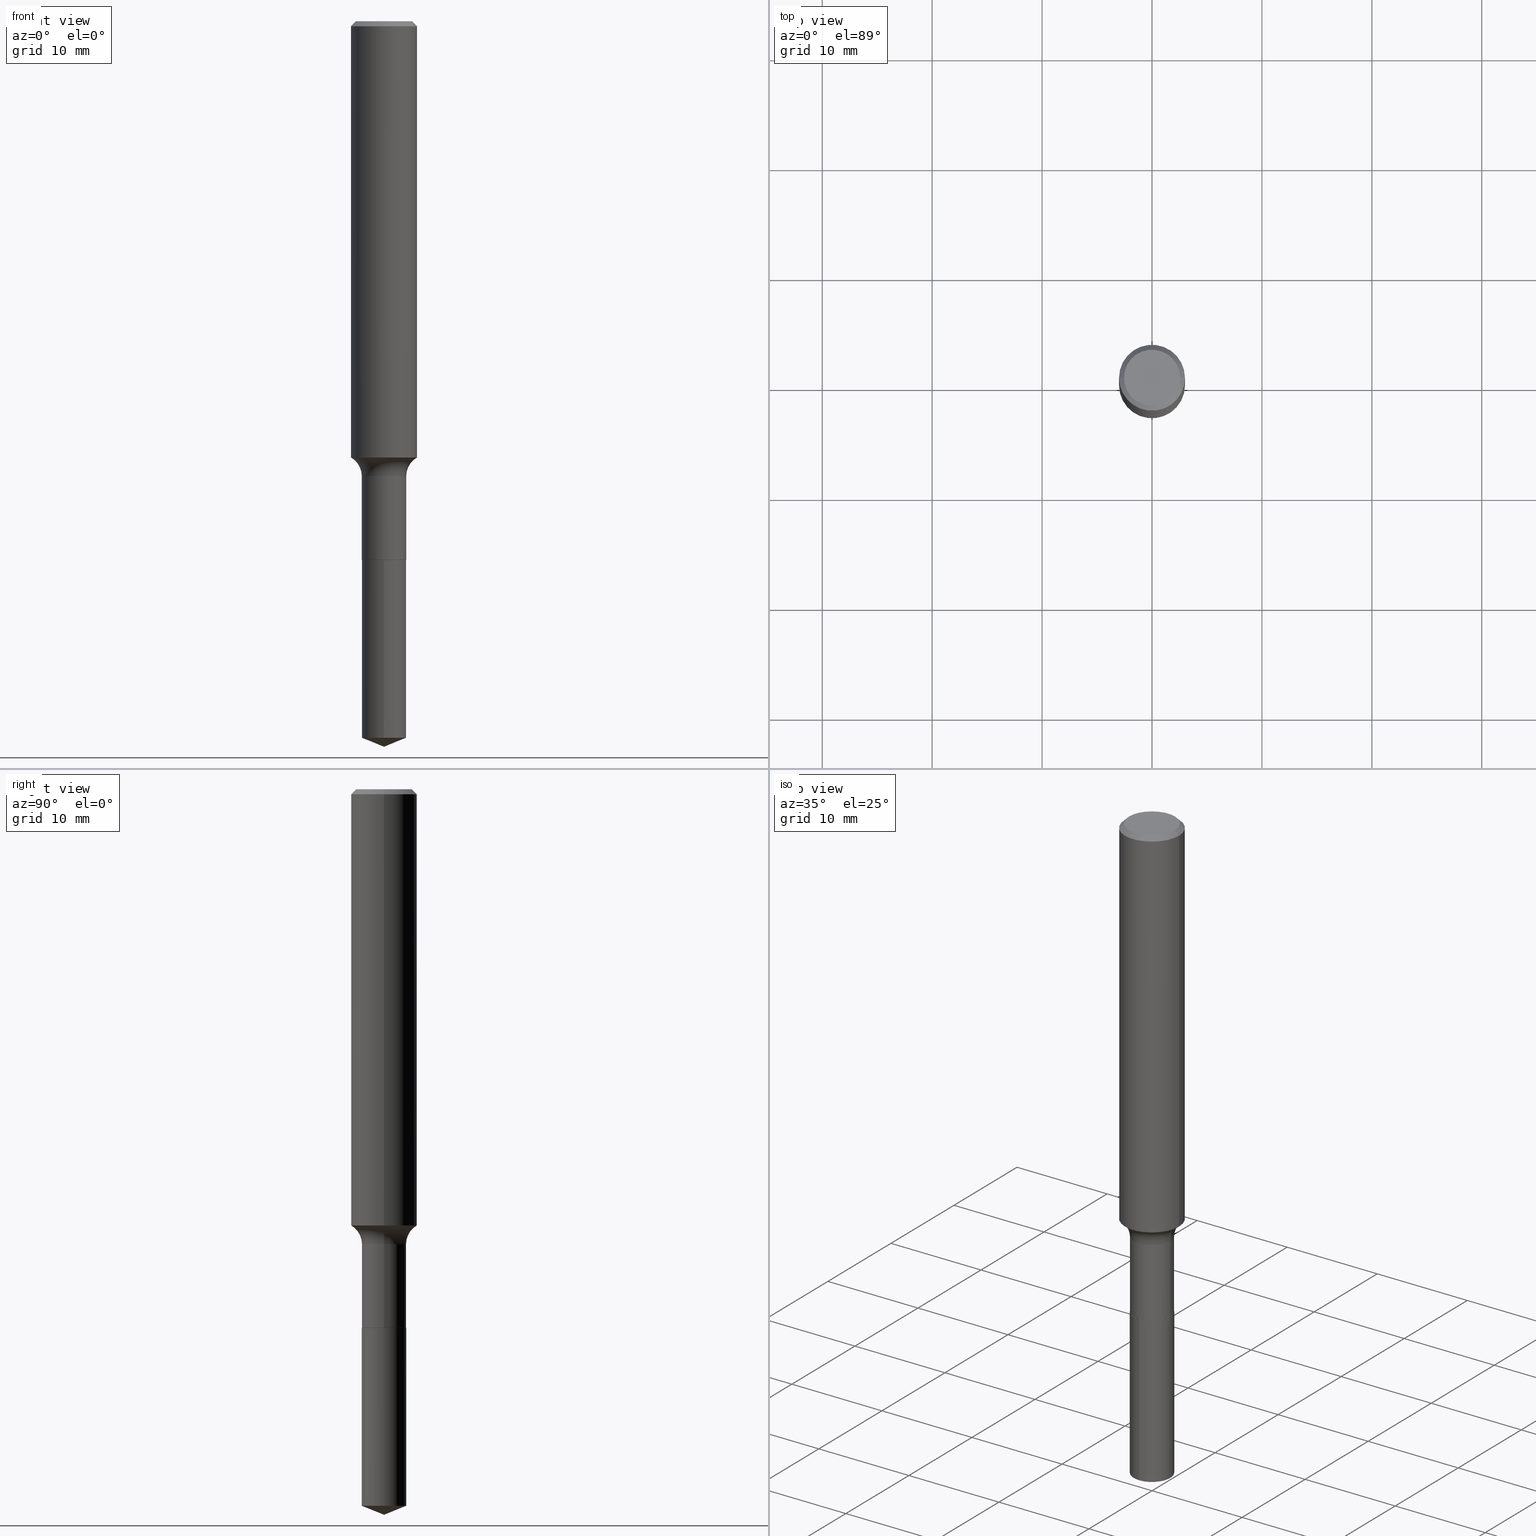
[diagram: canonical four-view strip — front | top / right | iso, engineering-drawing reading convention]
A machine part, canonical four-view strip (front | top / right | iso — engineering-drawing reading convention). The complete STEP part file that produces these views, byte-faithful:
ISO-10303-21;
HEADER;
FILE_DESCRIPTION (( 'STEP AP203' ),
    '1' );
FILE_NAME ('56804.STEP',
    '2024-04-19T13:59:07',
    ( '' ),
    ( '' ),
    'SwSTEP 2.0',
    'SolidWorks 2023',
    '' );
FILE_SCHEMA (( 'CONFIG_CONTROL_DESIGN' ));
ENDSEC;

DATA;
#1 = VECTOR ( 'NONE', #173, 39.37007874015748143 ) ;
#2 = AXIS2_PLACEMENT_3D ( 'NONE', #463, #121, #37 ) ;
#3 = CARTESIAN_POINT ( 'NONE',  ( 0.000000000000000000, 0.000000000000000000, 0.000000000000000000 ) ) ;
#4 = DIRECTION ( 'NONE',  ( -2.445416049279205825E-29, 3.491556889735175103E-15, 1.000000000000000000 ) ) ;
#5 = LINE ( 'NONE', #34, #167 ) ;
#6 = CARTESIAN_POINT ( 'NONE',  ( 4.716331139608654438E-29, -6.733670910092890989E-15, -1.928600000000000092 ) ) ;
#7 = CARTESIAN_POINT ( 'NONE',  ( 5.648814749293424695E-16, 0.07949999999999327049, -1.929100000000000259 ) ) ;
#8 = DIRECTION ( 'NONE',  ( 1.000000000000000000, -6.982962677686267499E-15, 4.883557194083112901E-29 ) ) ;
#9 = AXIS2_PLACEMENT_3D ( 'NONE', #69, #297, #449 ) ;
#10 = CALENDAR_DATE ( 2024, 19, 4 ) ;
#11 = CARTESIAN_POINT ( 'NONE',  ( 4.717553874011746679E-29, -6.735416650762311704E-15, -1.929099999999999815 ) ) ;
#12 = DIRECTION ( 'NONE',  ( 7.105427357601001859E-15, 1.000000000000000000, -3.491481338843145583E-15 ) ) ;
#13 = VERTEX_POINT ( 'NONE', #149 ) ;
#14 = LINE ( 'NONE', #134, #441 ) ;
#15 = EDGE_CURVE ( 'NONE', #411, #398, #378, .T. ) ;
#16 = ORIENTED_EDGE ( 'NONE', *, *, #87, .F. ) ;
#17 = CONICAL_SURFACE ( 'NONE', #283, 97.44436430772759650, 1.186823891356141969 ) ;
#18 = AXIS2_PLACEMENT_3D ( 'NONE', #158, #277, #305 ) ;
#19 = ORIENTED_EDGE ( 'NONE', *, *, #397, .F. ) ;
#20 = ORIENTED_EDGE ( 'NONE', *, *, #420, .F. ) ;
#21 = ORIENTED_EDGE ( 'NONE', *, *, #208, .F. ) ;
#22 = AXIS2_PLACEMENT_3D ( 'NONE', #82, #44, #159 ) ;
#23 = AXIS2_PLACEMENT_3D ( 'NONE', #3, #243, #118 ) ;
#24 = DIRECTION ( 'NONE',  ( 1.000000000000000000, -6.982962677686261977E-15, 0.000000000000000000 ) ) ;
#25 = APPROVAL_DATE_TIME ( #315, #216 ) ;
#26 = LINE ( 'NONE', #193, #166 ) ;
#27 = ORIENTED_EDGE ( 'NONE', *, *, #306, .F. ) ;
#28 = EDGE_CURVE ( 'NONE', #474, #64, #485, .T. ) ;
#29 = CARTESIAN_POINT ( 'NONE',  ( 3.820513225661906299E-29, -5.454680345324395042E-15, -1.562282543125872225 ) ) ;
#30 = CC_DESIGN_PERSON_AND_ORGANIZATION_ASSIGNMENT ( #357, #183, ( #50 ) ) ;
#31 = AXIS2_PLACEMENT_3D ( 'NONE', #35, #47, #387 ) ;
#32 = CARTESIAN_POINT ( 'NONE',  ( 4.717553874011746679E-29, -6.735416650762311704E-15, -1.929099999999999815 ) ) ;
#33 = CARTESIAN_POINT ( 'NONE',  ( 6.354169062447086700E-29, -9.072461422287877716E-15, -2.598399999999999821 ) ) ;
#34 = CARTESIAN_POINT ( 'NONE',  ( 0.07949999999999998734, -5.551455328760581522E-16, 3.876560536757768171E-30 ) ) ;
#35 = CARTESIAN_POINT ( 'NONE',  ( 6.275723864543851809E-29, -8.960166573142413647E-15, -2.566279915046104421 ) ) ;
#36 = DIRECTION ( 'NONE',  ( 1.000000000000000000, -6.982962677686271444E-15, 0.000000000000000000 ) ) ;
#37 = DIRECTION ( 'NONE',  ( 1.000000000000000000, -6.982962677686271444E-15, 0.000000000000000000 ) ) ;
#38 = LINE ( 'NONE', #350, #189 ) ;
#39 = CLOSED_SHELL ( 'NONE', ( #194, #459, #453, #259, #382, #247, #116, #137, #139, #231, #422, #488 ) ) ;
#40 = CIRCLE ( 'NONE', #324, 0.07799999999999995826 ) ;
#41 = CARTESIAN_POINT ( 'NONE',  ( 4.716331139608654438E-29, -6.733670910092890989E-15, -1.928600000000000092 ) ) ;
#42 = APPROVAL_PERSON_ORGANIZATION ( #88, #216, #278 ) ;
#43 = FACE_OUTER_BOUND ( 'NONE', #288, .T. ) ;
#44 = DIRECTION ( 'NONE',  ( -2.445416049279205825E-29, 3.491556889735175103E-15, 1.000000000000000000 ) ) ;
#45 = DATE_AND_TIME ( #55, #265 ) ;
#46 = PRODUCT_RELATED_PRODUCT_CATEGORY ( 'detail', '', ( #274 ) ) ;
#47 = DIRECTION ( 'NONE',  ( -2.445416049279205825E-29, 3.491556889735175103E-15, 1.000000000000000000 ) ) ;
#48 = EDGE_LOOP ( 'NONE', ( #98, #285, #226, #60 ) ) ;
#49 = AXIS2_PLACEMENT_3D ( 'NONE', #383, #279, #165 ) ;
#50 = SECURITY_CLASSIFICATION ( '', '', #319 ) ;
#51 = APPROVAL_ROLE ( '' ) ;
#52 = DIRECTION ( 'NONE',  ( -6.982962677686265922E-15, -1.000000000000000000, 3.436286784483350005E-15 ) ) ;
#53 = ORIENTED_EDGE ( 'NONE', *, *, #15, .F. ) ;
#54 = EDGE_CURVE ( 'NONE', #207, #411, #332, .T. ) ;
#55 = CALENDAR_DATE ( 2024, 19, 4 ) ;
#56 = FACE_OUTER_BOUND ( 'NONE', #102, .T. ) ;
#57 = VERTEX_POINT ( 'NONE', #33 ) ;
#58 = ORIENTED_EDGE ( 'NONE', *, *, #172, .T. ) ;
#59 = AXIS2_PLACEMENT_3D ( 'NONE', #464, #345, #8 ) ;
#60 = ORIENTED_EDGE ( 'NONE', *, *, #439, .F. ) ;
#61 = ORIENTED_EDGE ( 'NONE', *, *, #76, .F. ) ;
#62 = COORDINATED_UNIVERSAL_TIME_OFFSET ( 5, 0, .BEHIND. ) ;
#63 = CC_DESIGN_DATE_AND_TIME_ASSIGNMENT ( #469, #205, ( #50 ) ) ;
#64 = VERTEX_POINT ( 'NONE', #487 ) ;
#65 = PERSON_AND_ORGANIZATION ( #133, #67 ) ;
#66 = CIRCLE ( 'NONE', #337, 0.07900000000000000078 ) ;
#67 = ORGANIZATION ( 'UNSPECIFIED', 'UNSPECIFIED', '' ) ;
#68 = CARTESIAN_POINT ( 'NONE',  ( 0.000000000000000000, 0.000000000000000000, 0.000000000000000000 ) ) ;
#69 = CARTESIAN_POINT ( 'NONE',  ( 3.985135966559298165E-29, -5.689717989778789257E-15, -1.629599999999999715 ) ) ;
#70 = DESIGN_CONTEXT ( 'detailed design', #377, 'design' ) ;
#71 = CC_DESIGN_PERSON_AND_ORGANIZATION_ASSIGNMENT ( #65, #90, ( #84 ) ) ;
#72 = ORIENTED_EDGE ( 'NONE', *, *, #120, .T. ) ;
#73 = EDGE_LOOP ( 'NONE', ( #256, #391, #442, #327 ) ) ;
#74 = ORIENTED_EDGE ( 'NONE', *, *, #349, .T. ) ;
#75 = CYLINDRICAL_SURFACE ( 'NONE', #140, 0.1181000000000001077 ) ;
#76 = EDGE_CURVE ( 'NONE', #474, #440, #388, .T. ) ;
#77 = ADVANCED_BREP_SHAPE_REPRESENTATION ( '56804', ( #318, #475, #190 ), #296 ) ;
#78 = FACE_OUTER_BOUND ( 'NONE', #135, .T. ) ;
#79 = DIRECTION ( 'NONE',  ( 1.000000000000000000, -6.982962677686267499E-15, 4.876176775795935793E-29 ) ) ;
#80 = CARTESIAN_POINT ( 'NONE',  ( 4.717553874011746679E-29, -6.735416650762311704E-15, -1.929099999999999815 ) ) ;
#81 = CARTESIAN_POINT ( 'NONE',  ( 0.000000000000000000, 0.000000000000000000, 0.000000000000000000 ) ) ;
#82 = CARTESIAN_POINT ( 'NONE',  ( -8.992195157677283514E-28, 1.283905539975511333E-13, 36.77167874015748339 ) ) ;
#83 = AXIS2_PLACEMENT_3D ( 'NONE', #462, #86, #466 ) ;
#84 = PRODUCT_DEFINITION_FORMATION_WITH_SPECIFIED_SOURCE ( 'ANY', '', #274, .NOT_KNOWN. ) ;
#85 = DIRECTION ( 'NONE',  ( -1.000000000000000000, 6.982962677686266711E-15, 0.000000000000000000 ) ) ;
#86 = DIRECTION ( 'NONE',  ( 2.438088387897960049E-29, -3.491481338843145188E-15, -1.000000000000000000 ) ) ;
#87 = EDGE_CURVE ( 'NONE', #267, #440, #448, .T. ) ;
#88 = PERSON_AND_ORGANIZATION ( #133, #67 ) ;
#89 = CYLINDRICAL_SURFACE ( 'NONE', #249, 0.07949999999999998734 ) ;
#90 = PERSON_AND_ORGANIZATION_ROLE ( 'design_supplier' ) ;
#91 = CARTESIAN_POINT ( 'NONE',  ( 0.1181000000000001077, -8.246878922347488542E-16, 5.758764772215005345E-30 ) ) ;
#92 = CIRCLE ( 'NONE', #379, 0.07950000000000000122 ) ;
#93 = AXIS2_PLACEMENT_3D ( 'NONE', #444, #447, #481 ) ;
#94 = APPROVAL_DATE_TIME ( #433, #153 ) ;
#95 = CARTESIAN_POINT ( 'NONE',  ( 4.717553874011746679E-29, -6.735416650762311704E-15, -1.929099999999999815 ) ) ;
#96 = ORIENTED_EDGE ( 'NONE', *, *, #309, .F. ) ;
#97 = DIRECTION ( 'NONE',  ( -2.445416049279205825E-29, 3.491556889735175103E-15, 1.000000000000000000 ) ) ;
#98 = ORIENTED_EDGE ( 'NONE', *, *, #420, .T. ) ;
#99 = ORIENTED_EDGE ( 'NONE', *, *, #385, .T. ) ;
#100 = AXIS2_PLACEMENT_3D ( 'NONE', #410, #369, #454 ) ;
#101 = CIRCLE ( 'NONE', #457, 0.07900000000000000078 ) ;
#102 = EDGE_LOOP ( 'NONE', ( #405, #227, #436, #258 ) ) ;
#103 = EDGE_CURVE ( 'NONE', #253, #215, #446, .T. ) ;
#104 = ORIENTED_EDGE ( 'NONE', *, *, #292, .T. ) ;
#105 = CARTESIAN_POINT ( 'NONE',  ( -5.551455328760109192E-16, -0.07950000000000673195, -1.929099999999999593 ) ) ;
#106 = CALENDAR_DATE ( 2024, 19, 4 ) ;
#107 = LINE ( 'NONE', #490, #486 ) ;
#108 = CARTESIAN_POINT ( 'NONE',  ( 0.1180999999999999966, -8.865394841523547570E-16, -0.01771500000000010913 ) ) ;
#109 = CC_DESIGN_PERSON_AND_ORGANIZATION_ASSIGNMENT ( #406, #482, ( #162 ) ) ;
#110 = DIRECTION ( 'NONE',  ( 1.000000000000000000, -6.982962677686266711E-15, 4.876176775795935793E-29 ) ) ;
#111 = EDGE_LOOP ( 'NONE', ( #176, #104, #58, #268 ) ) ;
#112 = EDGE_LOOP ( 'NONE', ( #403, #413, #452, #96 ) ) ;
#113 = LOCAL_TIME ( 9, 59, 7.000000000000000000, #62 ) ;
#114 = CARTESIAN_POINT ( 'NONE',  ( 0.07900000000000000078, -7.287070702299526553E-15, -1.929099999999999815 ) ) ;
#115 = DIRECTION ( 'NONE',  ( -2.445468806185136597E-29, 3.491481338843145583E-15, 1.000000000000000000 ) ) ;
#116 = ADVANCED_FACE ( 'NONE', ( #144 ), #380, .F. ) ;
#117 = CARTESIAN_POINT ( 'NONE',  ( 0.000000000000000000, 0.000000000000000000, 0.000000000000000000 ) ) ;
#118 = DIRECTION ( 'NONE',  ( 1.000000000000000000, -6.982962677686267499E-15, 4.876176775795935793E-29 ) ) ;
#119 = CYLINDRICAL_SURFACE ( 'NONE', #229, 0.07950000000000000122 ) ;
#120 = EDGE_CURVE ( 'NONE', #57, #207, #107, .T. ) ;
#121 = DIRECTION ( 'NONE',  ( -2.445468806185136597E-29, 3.491481338843145583E-15, 1.000000000000000000 ) ) ;
#122 = DIRECTION ( 'NONE',  ( -2.445468806185136877E-29, 3.491481338843145188E-15, 1.000000000000000000 ) ) ;
#123 = AXIS2_PLACEMENT_3D ( 'NONE', #492, #340, #127 ) ;
#124 = LENGTH_MEASURE_WITH_UNIT ( LENGTH_MEASURE( 0.02539999999999999897 ), #299 );
#125 = DIRECTION ( 'NONE',  ( 1.000000000000000000, -6.982962677686265922E-15, 0.000000000000000000 ) ) ;
#126 = COORDINATED_UNIVERSAL_TIME_OFFSET ( 5, 0, .BEHIND. ) ;
#127 = DIRECTION ( 'NONE',  ( 1.000000000000000000, -6.982962677686271444E-15, 0.000000000000000000 ) ) ;
#128 = COORDINATED_UNIVERSAL_TIME_OFFSET ( 5, 0, .BEHIND. ) ;
#129 = LINE ( 'NONE', #286, #1 ) ;
#130 = EDGE_LOOP ( 'NONE', ( #99, #480 ) ) ;
#131 = TOROIDAL_SURFACE ( 'NONE', #59, 0.1574999999999999456, 0.07799999999999995826 ) ;
#132 = APPROVAL_PERSON_ORGANIZATION ( #209, #153, #51 ) ;
#133 = PERSON ( 'UNSPECIFIED', 'UNSPECIFIED', 'UNSPECIFIED', ('UNSPECIFIED'), ('UNSPECIFIED'), ('UNSPECIFIED') ) ;
#134 = CARTESIAN_POINT ( 'NONE',  ( 0.1180999999999999966, -8.720764054544245267E-16, -0.01771500000000010913 ) ) ;
#135 = EDGE_LOOP ( 'NONE', ( #365, #179, #188, #471 ) ) ;
#136 = VERTEX_POINT ( 'NONE', #108 ) ;
#137 = ADVANCED_FACE ( 'NONE', ( #266 ), #75, .T. ) ;
#138 = EDGE_LOOP ( 'NONE', ( #220, #289 ) ) ;
#139 = ADVANCED_FACE ( 'NONE', ( #224 ), #360, .T. ) ;
#140 = AXIS2_PLACEMENT_3D ( 'NONE', #68, #489, #110 ) ;
#141 = AXIS2_PLACEMENT_3D ( 'NONE', #29, #338, #143 ) ;
#142 = ORIENTED_EDGE ( 'NONE', *, *, #28, .F. ) ;
#143 = DIRECTION ( 'NONE',  ( 1.000000000000000000, -6.982962677686268288E-15, 0.000000000000000000 ) ) ;
#144 = FACE_OUTER_BOUND ( 'NONE', #330, .T. ) ;
#145 = CC_DESIGN_PERSON_AND_ORGANIZATION_ASSIGNMENT ( #333, #428, ( #84 ) ) ;
#146 = DIRECTION ( 'NONE',  ( 6.588037525764782613E-15, 0.9271838545667878684, 0.3746065934159107380 ) ) ;
#147 = CIRCLE ( 'NONE', #49, 0.1180999999999999966 ) ;
#148 = APPROVAL_PERSON_ORGANIZATION ( #219, #287, #244 ) ;
#149 = CARTESIAN_POINT ( 'NONE',  ( 0.07950000000000000122, -7.288816442968948846E-15, -1.928600000000000092 ) ) ;
#150 = DIRECTION ( 'NONE',  ( 1.000000000000000000, -6.982962677686267499E-15, 4.883557194083112901E-29 ) ) ;
#151 = FACE_OUTER_BOUND ( 'NONE', #111, .T. ) ;
#152 = CARTESIAN_POINT ( 'NONE',  ( -0.1180999999999999966, 7.628363003171413738E-16, -0.01771500000000010913 ) ) ;
#153 = APPROVAL ( #478, 'UNSPECIFIED' ) ;
#154 = AXIS2_PLACEMENT_3D ( 'NONE', #473, #97, #470 ) ;
#155 = CARTESIAN_POINT ( 'NONE',  ( 0.1181000000000001493, -6.279368237559145671E-15, -1.562282543125872225 ) ) ;
#156 = CC_DESIGN_APPROVAL ( #216, ( #84 ) ) ;
#157 = CARTESIAN_POINT ( 'NONE',  ( 5.648814749293423709E-16, 0.07949999999999105005, -2.566279915046105309 ) ) ;
#158 = CARTESIAN_POINT ( 'NONE',  ( 4.717553874011746679E-29, -6.735416650762311704E-15, -1.929099999999999815 ) ) ;
#159 = DIRECTION ( 'NONE',  ( -6.982962677686266711E-15, -1.000000000000000000, 3.498761904101857140E-15 ) ) ;
#160 = DIRECTION ( 'NONE',  ( 1.000000000000000000, -6.982962677686265922E-15, 0.000000000000000000 ) ) ;
#161 = DIRECTION ( 'NONE',  ( -2.445468806185136597E-29, 3.491481338843145583E-15, 1.000000000000000000 ) ) ;
#162 = PRODUCT_DEFINITION ( 'UNKNOWN', '', #84, #70 ) ;
#163 = LINE ( 'NONE', #91, #181 ) ;
#164 =( NAMED_UNIT ( * ) PLANE_ANGLE_UNIT ( ) SI_UNIT ( $, .RADIAN. ) );
#165 = DIRECTION ( 'NONE',  ( 1.000000000000000000, -6.982962677686266711E-15, 0.000000000000000000 ) ) ;
#166 = VECTOR ( 'NONE', #371, 39.37007874015748854 ) ;
#167 = VECTOR ( 'NONE', #418, 39.37007874015748143 ) ;
#168 = CARTESIAN_POINT ( 'NONE',  ( -8.992195157677283514E-28, 1.283905539975511333E-13, 36.77167874015748339 ) ) ;
#169 = EDGE_CURVE ( 'NONE', #57, #218, #26, .T. ) ;
#170 = CARTESIAN_POINT ( 'NONE',  ( 4.332147990156996744E-31, -6.185159191760670395E-17, -0.01771500000000010913 ) ) ;
#171 = ORIENTED_EDGE ( 'NONE', *, *, #228, .F. ) ;
#172 = EDGE_CURVE ( 'NONE', #367, #13, #455, .T. ) ;
#173 = DIRECTION ( 'NONE',  ( -0.7071067811866199593, 7.493145998870616062E-15, 0.7071067811864750752 ) ) ;
#174 = ORIENTED_EDGE ( 'NONE', *, *, #76, .T. ) ;
#175 = CIRCLE ( 'NONE', #352, 0.07950000000000000122 ) ;
#176 = ORIENTED_EDGE ( 'NONE', *, *, #335, .F. ) ;
#177 = EDGE_CURVE ( 'NONE', #207, #218, #255, .T. ) ;
#178 = ADVANCED_FACE ( 'NONE', ( #419 ), #414, .T. ) ;
#179 = ORIENTED_EDGE ( 'NONE', *, *, #331, .T. ) ;
#180 = ORIENTED_EDGE ( 'NONE', *, *, #120, .F. ) ;
#181 = VECTOR ( 'NONE', #425, 39.37007874015748143 ) ;
#182 = AXIS2_PLACEMENT_3D ( 'NONE', #232, #373, #85 ) ;
#183 = PERSON_AND_ORGANIZATION_ROLE ( 'classification_officer' ) ;
#184 = DIRECTION ( 'NONE',  ( -2.445468806185136597E-29, 3.491481338843145583E-15, 1.000000000000000000 ) ) ;
#185 = SHAPE_DEFINITION_REPRESENTATION ( #328, #77 ) ;
#186 = ORIENTED_EDGE ( 'NONE', *, *, #177, .T. ) ;
#187 = DIRECTION ( 'NONE',  ( -2.445468806185136597E-29, 3.491481338843145583E-15, 1.000000000000000000 ) ) ;
#188 = ORIENTED_EDGE ( 'NONE', *, *, #208, .T. ) ;
#189 = VECTOR ( 'NONE', #343, 39.37007874015748143 ) ;
#190 = AXIS2_PLACEMENT_3D ( 'NONE', #491, #303, #461 ) ;
#191 = DIRECTION ( 'NONE',  ( -6.982962677686266711E-15, -1.000000000000000000, 3.491481338843145583E-15 ) ) ;
#192 = APPLICATION_PROTOCOL_DEFINITION ( 'international standard', 'config_control_design', 1994, #445 ) ;
#193 = CARTESIAN_POINT ( 'NONE',  ( 6.354169062447087821E-29, -9.072461422287877716E-15, -2.598399999999999821 ) ) ;
#194 = ADVANCED_FACE ( 'NONE', ( #202 ), #301, .T. ) ;
#195 = DIRECTION ( 'NONE',  ( 1.000000000000000000, -6.982962677686266711E-15, 4.879445411049954809E-29 ) ) ;
#196 = EDGE_CURVE ( 'NONE', #218, #398, #38, .T. ) ;
#197 = DIRECTION ( 'NONE',  ( -6.982962677686265922E-15, -1.000000000000000000, 6.872573568966700010E-15 ) ) ;
#198 = EDGE_CURVE ( 'NONE', #218, #207, #239, .T. ) ;
#199 = CARTESIAN_POINT ( 'NONE',  ( -0.07900000000000000078, -6.171438662337720858E-15, -1.929099999999999815 ) ) ;
#200 = DIRECTION ( 'NONE',  ( -2.445468806185136597E-29, 3.491481338843145583E-15, 1.000000000000000000 ) ) ;
#201 = CARTESIAN_POINT ( 'NONE',  ( -0.1180999999999999966, -1.919114997688321240E-15, -0.01771500000000010913 ) ) ;
#202 = FACE_OUTER_BOUND ( 'NONE', #260, .T. ) ;
#203 = COORDINATED_UNIVERSAL_TIME_OFFSET ( 5, 0, .BEHIND. ) ;
#204 = DIRECTION ( 'NONE',  ( -6.982962677686265922E-15, -1.000000000000000000, 3.436286784483350005E-15 ) ) ;
#205 = DATE_TIME_ROLE ( 'classification_date' ) ;
#206 = DIRECTION ( 'NONE',  ( 0.7071067811865459074, -7.319954787623251312E-15, -0.7071067811865492381 ) ) ;
#207 = VERTEX_POINT ( 'NONE', #157 ) ;
#208 = EDGE_CURVE ( 'NONE', #136, #215, #147, .T. ) ;
#209 = PERSON_AND_ORGANIZATION ( #133, #67 ) ;
#210 = CARTESIAN_POINT ( 'NONE',  ( -0.07949999999999998734, 5.648814749292795578E-16, -3.910553396752649427E-30 ) ) ;
#211 = VERTEX_POINT ( 'NONE', #199 ) ;
#212 = AXIS2_PLACEMENT_3D ( 'NONE', #32, #233, #336 ) ;
#213 = CARTESIAN_POINT ( 'NONE',  ( 4.717553874011746679E-29, -6.735416650762311704E-15, -1.929099999999999815 ) ) ;
#214 = AXIS2_PLACEMENT_3D ( 'NONE', #300, #293, #150 ) ;
#215 = VERTEX_POINT ( 'NONE', #201 ) ;
#216 = APPROVAL ( #353, 'UNSPECIFIED' ) ;
#217 = ORIENTED_EDGE ( 'NONE', *, *, #28, .T. ) ;
#218 = VERTEX_POINT ( 'NONE', #307 ) ;
#219 = PERSON_AND_ORGANIZATION ( #133, #67 ) ;
#220 = ORIENTED_EDGE ( 'NONE', *, *, #416, .F. ) ;
#221 = ADVANCED_FACE ( 'NONE', ( #429 ), #119, .T. ) ;
#222 = LOCAL_TIME ( 9, 59, 7.000000000000000000, #126 ) ;
#223 = DATE_AND_TIME ( #389, #381 ) ;
#224 = FACE_OUTER_BOUND ( 'NONE', #73, .T. ) ;
#225 = CC_DESIGN_PERSON_AND_ORGANIZATION_ASSIGNMENT ( #275, #392, ( #274 ) ) ;
#226 = ORIENTED_EDGE ( 'NONE', *, *, #395, .F. ) ;
#227 = ORIENTED_EDGE ( 'NONE', *, *, #54, .T. ) ;
#228 = EDGE_CURVE ( 'NONE', #474, #136, #163, .T. ) ;
#229 = AXIS2_PLACEMENT_3D ( 'NONE', #11, #304, #204 ) ;
#230 = ORIENTED_EDGE ( 'NONE', *, *, #172, .F. ) ;
#231 = ADVANCED_FACE ( 'NONE', ( #273 ), #458, .F. ) ;
#232 = CARTESIAN_POINT ( 'NONE',  ( 4.332147990156996744E-31, -6.185159191760670395E-17, -0.01771500000000010913 ) ) ;
#233 = DIRECTION ( 'NONE',  ( -2.445416049279205825E-29, 3.491556889735175103E-15, 1.000000000000000000 ) ) ;
#234 = ORIENTED_EDGE ( 'NONE', *, *, #196, .T. ) ;
#235 = ADVANCED_FACE ( 'NONE', ( #313 ), #17, .T. ) ;
#236 = CYLINDRICAL_SURFACE ( 'NONE', #400, 0.1181000000000001077 ) ;
#237 = FACE_OUTER_BOUND ( 'NONE', #438, .T. ) ;
#238 = EDGE_CURVE ( 'NONE', #291, #13, #92, .T. ) ;
#239 = CIRCLE ( 'NONE', #31, 0.07950000000000000122 ) ;
#240 = AXIS2_PLACEMENT_3D ( 'NONE', #460, #187, #195 ) ;
#241 = CARTESIAN_POINT ( 'NONE',  ( 4.717553874011746679E-29, -6.735416650762311704E-15, -1.929099999999999815 ) ) ;
#242 = CARTESIAN_POINT ( 'NONE',  ( -0.1003850000000000159, 7.319105043583386689E-16, -3.975387207052680940E-17 ) ) ;
#243 = DIRECTION ( 'NONE',  ( -2.445468806185136597E-29, 3.491481338843145583E-15, 1.000000000000000000 ) ) ;
#244 = APPROVAL_ROLE ( '' ) ;
#245 = CARTESIAN_POINT ( 'NONE',  ( -0.07949999999999995959, -5.646812975006561157E-15, -1.629599999999999715 ) ) ;
#246 = APPROVAL_STATUS ( 'not_yet_approved' ) ;
#247 = ADVANCED_FACE ( 'NONE', ( #375 ), #89, .T. ) ;
#248 = DIRECTION ( 'NONE',  ( -2.445468806185136597E-29, 3.491481338843145583E-15, 1.000000000000000000 ) ) ;
#249 = AXIS2_PLACEMENT_3D ( 'NONE', #117, #468, #79 ) ;
#250 = DATE_TIME_ROLE ( 'creation_date' ) ;
#251 = DIRECTION ( 'NONE',  ( -2.445416049279205825E-29, 3.491556889735175103E-15, 1.000000000000000000 ) ) ;
#252 = ORIENTED_EDGE ( 'NONE', *, *, #54, .F. ) ;
#253 = VERTEX_POINT ( 'NONE', #242 ) ;
#254 = EDGE_CURVE ( 'NONE', #64, #215, #272, .T. ) ;
#255 = CIRCLE ( 'NONE', #351, 0.07950000000000000122 ) ;
#256 = ORIENTED_EDGE ( 'NONE', *, *, #331, .F. ) ;
#257 = PLANE ( 'NONE',  #284 ) ;
#258 = ORIENTED_EDGE ( 'NONE', *, *, #196, .F. ) ;
#259 = ADVANCED_FACE ( 'NONE', ( #237 ), #131, .F. ) ;
#260 = EDGE_LOOP ( 'NONE', ( #262, #430, #20, #230 ) ) ;
#261 = FACE_OUTER_BOUND ( 'NONE', #477, .T. ) ;
#262 = ORIENTED_EDGE ( 'NONE', *, *, #416, .T. ) ;
#263 = CLOSED_SHELL ( 'NONE', ( #321, #235, #178, #221, #402 ) ) ;
#264 = PLANE ( 'NONE',  #18 ) ;
#265 = LOCAL_TIME ( 9, 59, 7.000000000000000000, #203 ) ;
#266 = FACE_OUTER_BOUND ( 'NONE', #112, .T. ) ;
#267 = VERTEX_POINT ( 'NONE', #245 ) ;
#268 = ORIENTED_EDGE ( 'NONE', *, *, #238, .F. ) ;
#269 = DIRECTION ( 'NONE',  ( 0.7071067811866199593, -2.468850131083015945E-15, 0.7071067811864750752 ) ) ;
#270 = CARTESIAN_POINT ( 'NONE',  ( 0.07949999999999995959, -6.244863522654847902E-15, -1.629599999999999715 ) ) ;
#271 = DIRECTION ( 'NONE',  ( -2.445468806185136597E-29, 3.491481338843145583E-15, 1.000000000000000000 ) ) ;
#272 = LINE ( 'NONE', #421, #431 ) ;
#273 = FACE_OUTER_BOUND ( 'NONE', #130, .T. ) ;
#274 = PRODUCT ( '56804', '56804', '', ( #467 ) ) ;
#275 = PERSON_AND_ORGANIZATION ( #133, #67 ) ;
#276 = DIRECTION ( 'NONE',  ( -2.445468806185136597E-29, 3.491481338843145583E-15, 1.000000000000000000 ) ) ;
#277 = DIRECTION ( 'NONE',  ( 2.445416049279205264E-29, -3.491556889735175498E-15, -1.000000000000000000 ) ) ;
#278 = APPROVAL_ROLE ( '' ) ;
#279 = DIRECTION ( 'NONE',  ( -2.445468806185136597E-29, 3.491481338843145583E-15, 1.000000000000000000 ) ) ;
#280 = DIRECTION ( 'NONE',  ( -2.438088387897960049E-29, 3.491481338843145188E-15, 1.000000000000000000 ) ) ;
#281 = APPLICATION_PROTOCOL_DEFINITION ( 'international standard', 'config_control_design', 1994, #377 ) ;
#282 = DIRECTION ( 'NONE',  ( 1.000000000000000000, -6.982962677686266711E-15, 4.879445411049954809E-29 ) ) ;
#283 = AXIS2_PLACEMENT_3D ( 'NONE', #168, #316, #308 ) ;
#284 = AXIS2_PLACEMENT_3D ( 'NONE', #213, #280, #362 ) ;
#285 = ORIENTED_EDGE ( 'NONE', *, *, #306, .T. ) ;
#286 = CARTESIAN_POINT ( 'NONE',  ( -0.07900000000000000078, -6.174087889511832059E-15, -1.929099999999999815 ) ) ;
#287 = APPROVAL ( #246, 'UNSPECIFIED' ) ;
#288 = EDGE_LOOP ( 'NONE', ( #217, #290, #21, #171 ) ) ;
#289 = ORIENTED_EDGE ( 'NONE', *, *, #292, .F. ) ;
#290 = ORIENTED_EDGE ( 'NONE', *, *, #254, .T. ) ;
#291 = VERTEX_POINT ( 'NONE', #376 ) ;
#292 = EDGE_CURVE ( 'NONE', #211, #367, #66, .T. ) ;
#293 = DIRECTION ( 'NONE',  ( -2.445468806185136597E-29, 3.491481338843145583E-15, 1.000000000000000000 ) ) ;
#294 = ORIENTED_EDGE ( 'NONE', *, *, #169, .F. ) ;
#295 = VECTOR ( 'NONE', #451, 39.37007874015748143 ) ;
#296 =( GEOMETRIC_REPRESENTATION_CONTEXT ( 3 ) GLOBAL_UNCERTAINTY_ASSIGNED_CONTEXT ( ( #348 ) ) GLOBAL_UNIT_ASSIGNED_CONTEXT ( ( #342, #164, #312 ) ) REPRESENTATION_CONTEXT ( 'NONE', 'WORKASPACE' ) );
#297 = DIRECTION ( 'NONE',  ( -2.445468806185136597E-29, 3.491481338843145583E-15, 1.000000000000000000 ) ) ;
#298 = EDGE_LOOP ( 'NONE', ( #252, #186, #234, #53 ) ) ;
#299 =( LENGTH_UNIT ( ) NAMED_UNIT ( * ) SI_UNIT ( $, .METRE. ) );
#300 = CARTESIAN_POINT ( 'NONE',  ( 3.985135966559298165E-29, -5.689717989778789257E-15, -1.629599999999999715 ) ) ;
#301 = CONICAL_SURFACE ( 'NONE', #123, 0.07900000000000000078, 0.7853981633975507526 ) ;
#302 = AXIS2_PLACEMENT_3D ( 'NONE', #41, #200, #160 ) ;
#303 = DIRECTION ( 'NONE',  ( 0.000000000000000000, 0.000000000000000000, 1.000000000000000000 ) ) ;
#304 = DIRECTION ( 'NONE',  ( -2.445416049279205825E-29, 3.491556889735175103E-15, 1.000000000000000000 ) ) ;
#305 = DIRECTION ( 'NONE',  ( 6.982962677686265922E-15, 1.000000000000000000, -3.491556889735175498E-15 ) ) ;
#306 = EDGE_CURVE ( 'NONE', #291, #267, #427, .T. ) ;
#307 = CARTESIAN_POINT ( 'NONE',  ( -5.551455328759956350E-16, -0.07950000000000898015, -2.566279915046104421 ) ) ;
#308 = DIRECTION ( 'NONE',  ( -6.982962677686266711E-15, -1.000000000000000000, 3.498761904101857140E-15 ) ) ;
#309 = EDGE_CURVE ( 'NONE', #215, #136, #366, .T. ) ;
#310 = AXIS2_PLACEMENT_3D ( 'NONE', #170, #323, #434 ) ;
#311 = CC_DESIGN_APPROVAL ( #153, ( #162 ) ) ;
#312 =( NAMED_UNIT ( * ) SI_UNIT ( $, .STERADIAN. ) SOLID_ANGLE_UNIT ( ) );
#313 = FACE_OUTER_BOUND ( 'NONE', #394, .T. ) ;
#314 = CC_DESIGN_DATE_AND_TIME_ASSIGNMENT ( #45, #250, ( #162 ) ) ;
#315 = DATE_AND_TIME ( #106, #113 ) ;
#316 = DIRECTION ( 'NONE',  ( -2.445416049279205825E-29, 3.491556889735175103E-15, 1.000000000000000000 ) ) ;
#317 = FACE_OUTER_BOUND ( 'NONE', #48, .T. ) ;
#318 = MANIFOLD_SOLID_BREP ( 'Body-Move/Copy2[1]', #263 ) ;
#319 = SECURITY_CLASSIFICATION_LEVEL ( 'unclassified' ) ;
#320 = DIRECTION ( 'NONE',  ( -1.000000000000000000, 7.105427357601001859E-15, 0.000000000000000000 ) ) ;
#321 = ADVANCED_FACE ( 'NONE', ( #56 ), #358, .T. ) ;
#322 = ORIENTED_EDGE ( 'NONE', *, *, #87, .T. ) ;
#323 = DIRECTION ( 'NONE',  ( -2.445468806185136597E-29, 3.491481338843145583E-15, 1.000000000000000000 ) ) ;
#324 = AXIS2_PLACEMENT_3D ( 'NONE', #390, #12, #320 ) ;
#325 = ORIENTED_EDGE ( 'NONE', *, *, #439, .T. ) ;
#326 = ORIENTED_EDGE ( 'NONE', *, *, #238, .T. ) ;
#327 = ORIENTED_EDGE ( 'NONE', *, *, #309, .T. ) ;
#328 = PRODUCT_DEFINITION_SHAPE ( 'NONE', 'NONE',  #162 ) ;
#329 = VECTOR ( 'NONE', #269, 39.37007874015748143 ) ;
#330 = EDGE_LOOP ( 'NONE', ( #412, #142, #174, #359 ) ) ;
#331 = EDGE_CURVE ( 'NONE', #408, #136, #14, .T. ) ;
#332 = LINE ( 'NONE', #334, #407 ) ;
#333 = PERSON_AND_ORGANIZATION ( #133, #67 ) ;
#334 = CARTESIAN_POINT ( 'NONE',  ( 5.648814749293266923E-16, 0.07949999999999327049, -1.929100000000000259 ) ) ;
#335 = EDGE_CURVE ( 'NONE', #211, #291, #129, .T. ) ;
#336 = DIRECTION ( 'NONE',  ( -6.982962677686265922E-15, -1.000000000000000000, 3.436286784483350005E-15 ) ) ;
#337 = AXIS2_PLACEMENT_3D ( 'NONE', #241, #276, #386 ) ;
#338 = DIRECTION ( 'NONE',  ( -2.445468806185136597E-29, 3.491481338843145583E-15, 1.000000000000000000 ) ) ;
#339 = DIRECTION ( 'NONE',  ( 1.000000000000000000, -6.982962677686268288E-15, 0.000000000000000000 ) ) ;
#340 = DIRECTION ( 'NONE',  ( -2.445468806185136597E-29, 3.491481338843145583E-15, 1.000000000000000000 ) ) ;
#341 = CIRCLE ( 'NONE', #472, 0.1003850000000000159 ) ;
#342 =( CONVERSION_BASED_UNIT ( 'INCH', #124 ) LENGTH_UNIT ( ) NAMED_UNIT ( #396 ) );
#343 = DIRECTION ( 'NONE',  ( -2.445416049279205825E-29, 3.491556889735175498E-15, 1.000000000000000000 ) ) ;
#344 = DIRECTION ( 'NONE',  ( 1.000000000000000000, -6.982962677686266711E-15, 4.876176775795935793E-29 ) ) ;
#345 = DIRECTION ( 'NONE',  ( -2.445468806185136597E-29, 3.491481338843145583E-15, 1.000000000000000000 ) ) ;
#346 = CARTESIAN_POINT ( 'NONE',  ( 0.1003850000000000159, -7.803837484803599345E-16, -3.975387207051662201E-17 ) ) ;
#347 = EDGE_CURVE ( 'NONE', #408, #253, #341, .T. ) ;
#348 = UNCERTAINTY_MEASURE_WITH_UNIT (LENGTH_MEASURE( 1.000000000000000082E-05 ), #342, 'distance_accuracy_value', 'NONE');
#349 = EDGE_CURVE ( 'NONE', #64, #267, #40, .T. ) ;
#350 = CARTESIAN_POINT ( 'NONE',  ( -5.551455328760109192E-16, -0.07950000000000673195, -1.929099999999999593 ) ) ;
#351 = AXIS2_PLACEMENT_3D ( 'NONE', #354, #4, #197 ) ;
#352 = AXIS2_PLACEMENT_3D ( 'NONE', #95, #251, #52 ) ;
#353 = APPROVAL_STATUS ( 'not_yet_approved' ) ;
#354 = CARTESIAN_POINT ( 'NONE',  ( 6.275723864543851809E-29, -8.960166573142413647E-15, -2.566279915046104421 ) ) ;
#355 = APPROVAL_DATE_TIME ( #223, #287 ) ;
#356 = CARTESIAN_POINT ( 'NONE',  ( 9.721685407353558503E-46, -1.387999024809845952E-31, -3.975387207052179891E-17 ) ) ;
#357 = PERSON_AND_ORGANIZATION ( #133, #67 ) ;
#358 = CYLINDRICAL_SURFACE ( 'NONE', #154, 0.07950000000000000122 ) ;
#359 = ORIENTED_EDGE ( 'NONE', *, *, #395, .T. ) ;
#360 = CONICAL_SURFACE ( 'NONE', #100, 0.1180999999999999966, 0.7853981633974459475 ) ;
#361 = CIRCLE ( 'NONE', #141, 0.1181000000000002048 ) ;
#362 = DIRECTION ( 'NONE',  ( 1.000000000000000000, -6.982962677686265922E-15, 4.876176775795935793E-29 ) ) ;
#363 = ORIENTED_EDGE ( 'NONE', *, *, #370, .T. ) ;
#364 = ORIENTED_EDGE ( 'NONE', *, *, #15, .T. ) ;
#365 = ORIENTED_EDGE ( 'NONE', *, *, #347, .F. ) ;
#366 = CIRCLE ( 'NONE', #310, 0.1180999999999999966 ) ;
#367 = VERTEX_POINT ( 'NONE', #393 ) ;
#368 = CONICAL_SURFACE ( 'NONE', #182, 0.1180999999999999966, 0.7853981633974459475 ) ;
#369 = DIRECTION ( 'NONE',  ( 2.445468806185136597E-29, -3.491481338843145583E-15, -1.000000000000000000 ) ) ;
#370 = EDGE_CURVE ( 'NONE', #398, #411, #175, .T. ) ;
#371 = DIRECTION ( 'NONE',  ( -6.474490251793170740E-15, -0.9271838545667852038, 0.3746065934159171773 ) ) ;
#372 = ORIENTED_EDGE ( 'NONE', *, *, #198, .F. ) ;
#373 = DIRECTION ( 'NONE',  ( 2.445468806185136597E-29, -3.491481338843145583E-15, -1.000000000000000000 ) ) ;
#374 = CARTESIAN_POINT ( 'NONE',  ( 3.820513225661906299E-29, -5.454680345324395042E-15, -1.562282543125872225 ) ) ;
#375 = FACE_OUTER_BOUND ( 'NONE', #417, .T. ) ;
#376 = CARTESIAN_POINT ( 'NONE',  ( -0.07950000000000000122, -5.646812975006561157E-15, -1.928600000000000092 ) ) ;
#377 = APPLICATION_CONTEXT ( 'configuration controlled 3d designs of mechanical parts and assemblies' ) ;
#378 = CIRCLE ( 'NONE', #212, 0.07950000000000000122 ) ;
#379 = AXIS2_PLACEMENT_3D ( 'NONE', #6, #271, #125 ) ;
#380 = TOROIDAL_SURFACE ( 'NONE', #214, 0.1574999999999999456, 0.07799999999999995826 ) ;
#381 = LOCAL_TIME ( 9, 59, 7.000000000000000000, #128 ) ;
#382 = ADVANCED_FACE ( 'NONE', ( #317 ), #384, .T. ) ;
#383 = CARTESIAN_POINT ( 'NONE',  ( 4.332147990156996744E-31, -6.185159191760670395E-17, -0.01771500000000010913 ) ) ;
#384 = CYLINDRICAL_SURFACE ( 'NONE', #23, 0.07949999999999998734 ) ;
#385 = EDGE_CURVE ( 'NONE', #253, #408, #415, .T. ) ;
#386 = DIRECTION ( 'NONE',  ( 1.000000000000000000, -6.982962677686271444E-15, 0.000000000000000000 ) ) ;
#387 = DIRECTION ( 'NONE',  ( -6.982962677686265922E-15, -1.000000000000000000, 6.872573568966700010E-15 ) ) ;
#388 = CIRCLE ( 'NONE', #423, 0.07799999999999995826 ) ;
#389 = CALENDAR_DATE ( 2024, 19, 4 ) ;
#390 = CARTESIAN_POINT ( 'NONE',  ( -0.1574999999999999456, -4.570613180956631653E-15, -1.629599999999999715 ) ) ;
#391 = ORIENTED_EDGE ( 'NONE', *, *, #385, .F. ) ;
#392 = PERSON_AND_ORGANIZATION_ROLE ( 'design_owner' ) ;
#393 = CARTESIAN_POINT ( 'NONE',  ( 0.07900000000000000078, -7.287070702299526553E-15, -1.929099999999999815 ) ) ;
#394 = EDGE_LOOP ( 'NONE', ( #294, #72, #372 ) ) ;
#395 = EDGE_CURVE ( 'NONE', #440, #267, #432, .T. ) ;
#396 = DIMENSIONAL_EXPONENTS ( 1.000000000000000000, 0.000000000000000000, 0.000000000000000000, 0.000000000000000000, 0.000000000000000000, 0.000000000000000000, 0.000000000000000000 ) ;
#397 = EDGE_CURVE ( 'NONE', #64, #474, #361, .T. ) ;
#398 = VERTEX_POINT ( 'NONE', #105 ) ;
#399 = AXIS2_PLACEMENT_3D ( 'NONE', #374, #184, #339 ) ;
#400 = AXIS2_PLACEMENT_3D ( 'NONE', #81, #161, #344 ) ;
#401 = ORIENTED_EDGE ( 'NONE', *, *, #169, .T. ) ;
#402 = ADVANCED_FACE ( 'NONE', ( #261 ), #264, .F. ) ;
#403 = ORIENTED_EDGE ( 'NONE', *, *, #254, .F. ) ;
#404 = CALENDAR_DATE ( 2024, 19, 4 ) ;
#405 = ORIENTED_EDGE ( 'NONE', *, *, #198, .T. ) ;
#406 = PERSON_AND_ORGANIZATION ( #133, #67 ) ;
#407 = VECTOR ( 'NONE', #484, 39.37007874015748143 ) ;
#408 = VERTEX_POINT ( 'NONE', #346 ) ;
#409 = CC_DESIGN_APPROVAL ( #287, ( #50 ) ) ;
#410 = CARTESIAN_POINT ( 'NONE',  ( 4.332147990156996744E-31, -6.185159191760670395E-17, -0.01771500000000010913 ) ) ;
#411 = VERTEX_POINT ( 'NONE', #7 ) ;
#412 = ORIENTED_EDGE ( 'NONE', *, *, #349, .F. ) ;
#413 = ORIENTED_EDGE ( 'NONE', *, *, #397, .T. ) ;
#414 = CONICAL_SURFACE ( 'NONE', #22, 97.44436430772759650, 1.186823891356141969 ) ;
#415 = CIRCLE ( 'NONE', #240, 0.1003850000000000159 ) ;
#416 = EDGE_CURVE ( 'NONE', #367, #211, #101, .T. ) ;
#417 = EDGE_LOOP ( 'NONE', ( #27, #326, #325, #16 ) ) ;
#418 = DIRECTION ( 'NONE',  ( -2.445468806185136877E-29, 3.491481338843145188E-15, 1.000000000000000000 ) ) ;
#419 = FACE_OUTER_BOUND ( 'NONE', #476, .T. ) ;
#420 = EDGE_CURVE ( 'NONE', #13, #291, #450, .T. ) ;
#421 = CARTESIAN_POINT ( 'NONE',  ( -0.1181000000000001077, 8.391509709326790846E-16, -5.809262341591049389E-30 ) ) ;
#422 = ADVANCED_FACE ( 'NONE', ( #435 ), #257, .F. ) ;
#423 = AXIS2_PLACEMENT_3D ( 'NONE', #483, #191, #24 ) ;
#424 = CC_DESIGN_SECURITY_CLASSIFICATION ( #50, ( #84 ) ) ;
#425 = DIRECTION ( 'NONE',  ( -2.445468806185136877E-29, 3.491481338843145188E-15, 1.000000000000000000 ) ) ;
#426 = COORDINATED_UNIVERSAL_TIME_OFFSET ( 5, 0, .BEHIND. ) ;
#427 = LINE ( 'NONE', #210, #456 ) ;
#428 = PERSON_AND_ORGANIZATION_ROLE ( 'creator' ) ;
#429 = FACE_OUTER_BOUND ( 'NONE', #298, .T. ) ;
#430 = ORIENTED_EDGE ( 'NONE', *, *, #335, .T. ) ;
#431 = VECTOR ( 'NONE', #122, 39.37007874015748143 ) ;
#432 = CIRCLE ( 'NONE', #93, 0.07949999999999995959 ) ;
#433 = DATE_AND_TIME ( #10, #222 ) ;
#434 = DIRECTION ( 'NONE',  ( 1.000000000000000000, -6.982962677686266711E-15, 0.000000000000000000 ) ) ;
#435 = FACE_OUTER_BOUND ( 'NONE', #138, .T. ) ;
#436 = ORIENTED_EDGE ( 'NONE', *, *, #370, .F. ) ;
#437 = DIRECTION ( 'NONE',  ( -2.445468806185136877E-29, 3.491481338843145188E-15, 1.000000000000000000 ) ) ;
#438 = EDGE_LOOP ( 'NONE', ( #19, #74, #322, #61 ) ) ;
#439 = EDGE_CURVE ( 'NONE', #13, #440, #5, .T. ) ;
#440 = VERTEX_POINT ( 'NONE', #270 ) ;
#441 = VECTOR ( 'NONE', #206, 39.37007874015748143 ) ;
#442 = ORIENTED_EDGE ( 'NONE', *, *, #103, .T. ) ;
#443 = ORIENTED_EDGE ( 'NONE', *, *, #177, .F. ) ;
#444 = CARTESIAN_POINT ( 'NONE',  ( 3.985135966559298165E-29, -5.689717989778789257E-15, -1.629599999999999715 ) ) ;
#445 = APPLICATION_CONTEXT ( 'configuration controlled 3d designs of mechanical parts and assemblies' ) ;
#446 = LINE ( 'NONE', #152, #295 ) ;
#447 = DIRECTION ( 'NONE',  ( -2.445468806185136597E-29, 3.491481338843145583E-15, 1.000000000000000000 ) ) ;
#448 = CIRCLE ( 'NONE', #9, 0.07949999999999995959 ) ;
#449 = DIRECTION ( 'NONE',  ( 1.000000000000000000, -6.982962677686269866E-15, 0.000000000000000000 ) ) ;
#450 = CIRCLE ( 'NONE', #302, 0.07950000000000000122 ) ;
#451 = DIRECTION ( 'NONE',  ( -0.7071067811865459074, 2.468850131082239706E-15, -0.7071067811865492381 ) ) ;
#452 = ORIENTED_EDGE ( 'NONE', *, *, #228, .T. ) ;
#453 = ADVANCED_FACE ( 'NONE', ( #43 ), #236, .T. ) ;
#454 = DIRECTION ( 'NONE',  ( -1.000000000000000000, 6.982962677686266711E-15, 0.000000000000000000 ) ) ;
#455 = LINE ( 'NONE', #114, #329 ) ;
#456 = VECTOR ( 'NONE', #437, 39.37007874015748143 ) ;
#457 = AXIS2_PLACEMENT_3D ( 'NONE', #80, #115, #36 ) ;
#458 = PLANE ( 'NONE',  #83 ) ;
#459 = ADVANCED_FACE ( 'NONE', ( #78 ), #368, .T. ) ;
#460 = CARTESIAN_POINT ( 'NONE',  ( 9.721685407353558503E-46, -1.387999024809845952E-31, -3.975387207052179891E-17 ) ) ;
#461 = DIRECTION ( 'NONE',  ( 1.000000000000000000, 0.000000000000000000, 0.000000000000000000 ) ) ;
#462 = CARTESIAN_POINT ( 'NONE',  ( 4.860842703676779252E-46, -6.939995124049229759E-32, -1.987693603526089945E-17 ) ) ;
#463 = CARTESIAN_POINT ( 'NONE',  ( 4.717553874011746679E-29, -6.735416650762311704E-15, -1.929099999999999815 ) ) ;
#464 = CARTESIAN_POINT ( 'NONE',  ( 3.985135966559298165E-29, -5.689717989778789257E-15, -1.629599999999999715 ) ) ;
#465 = CONICAL_SURFACE ( 'NONE', #2, 0.07900000000000000078, 0.7853981633975507526 ) ;
#466 = DIRECTION ( 'NONE',  ( -1.000000000000000000, 6.982962677686265922E-15, -4.876176775795935793E-29 ) ) ;
#467 = MECHANICAL_CONTEXT ( 'NONE', #445, 'mechanical' ) ;
#468 = DIRECTION ( 'NONE',  ( -2.445468806185136597E-29, 3.491481338843145583E-15, 1.000000000000000000 ) ) ;
#469 = DATE_AND_TIME ( #404, #479 ) ;
#470 = DIRECTION ( 'NONE',  ( -6.982962677686265922E-15, -1.000000000000000000, 3.436286784483350005E-15 ) ) ;
#471 = ORIENTED_EDGE ( 'NONE', *, *, #103, .F. ) ;
#472 = AXIS2_PLACEMENT_3D ( 'NONE', #356, #248, #282 ) ;
#473 = CARTESIAN_POINT ( 'NONE',  ( 4.717553874011746679E-29, -6.735416650762311704E-15, -1.929099999999999815 ) ) ;
#474 = VERTEX_POINT ( 'NONE', #155 ) ;
#475 = MANIFOLD_SOLID_BREP ( 'Body-Move/Copy2[2]', #39 ) ;
#476 = EDGE_LOOP ( 'NONE', ( #180, #401, #443 ) ) ;
#477 = EDGE_LOOP ( 'NONE', ( #363, #364 ) ) ;
#478 = APPROVAL_STATUS ( 'not_yet_approved' ) ;
#479 = LOCAL_TIME ( 9, 59, 7.000000000000000000, #426 ) ;
#480 = ORIENTED_EDGE ( 'NONE', *, *, #347, .T. ) ;
#481 = DIRECTION ( 'NONE',  ( 1.000000000000000000, -6.982962677686269866E-15, 0.000000000000000000 ) ) ;
#482 = PERSON_AND_ORGANIZATION_ROLE ( 'creator' ) ;
#483 = CARTESIAN_POINT ( 'NONE',  ( 0.1574999999999999456, -6.789534611514376737E-15, -1.629599999999999715 ) ) ;
#484 = DIRECTION ( 'NONE',  ( -2.445416049279205825E-29, 3.491556889735175498E-15, 1.000000000000000000 ) ) ;
#485 = CIRCLE ( 'NONE', #399, 0.1181000000000002048 ) ;
#486 = VECTOR ( 'NONE', #146, 39.37007874015748854 ) ;
#487 = CARTESIAN_POINT ( 'NONE',  ( -0.1181000000000001493, -4.615529374391714478E-15, -1.562282543125872225 ) ) ;
#488 = ADVANCED_FACE ( 'NONE', ( #151 ), #465, .T. ) ;
#489 = DIRECTION ( 'NONE',  ( -2.445468806185136597E-29, 3.491481338843145583E-15, 1.000000000000000000 ) ) ;
#490 = CARTESIAN_POINT ( 'NONE',  ( 6.354374394005791819E-29, -9.072169931836252108E-15, -2.598399999999999821 ) ) ;
#491 = CARTESIAN_POINT ( 'NONE',  ( 0.000000000000000000, 0.000000000000000000, 0.000000000000000000 ) ) ;
#492 = CARTESIAN_POINT ( 'NONE',  ( 4.717553874011746679E-29, -6.735416650762311704E-15, -1.929099999999999815 ) ) ;
ENDSEC;
END-ISO-10303-21;
